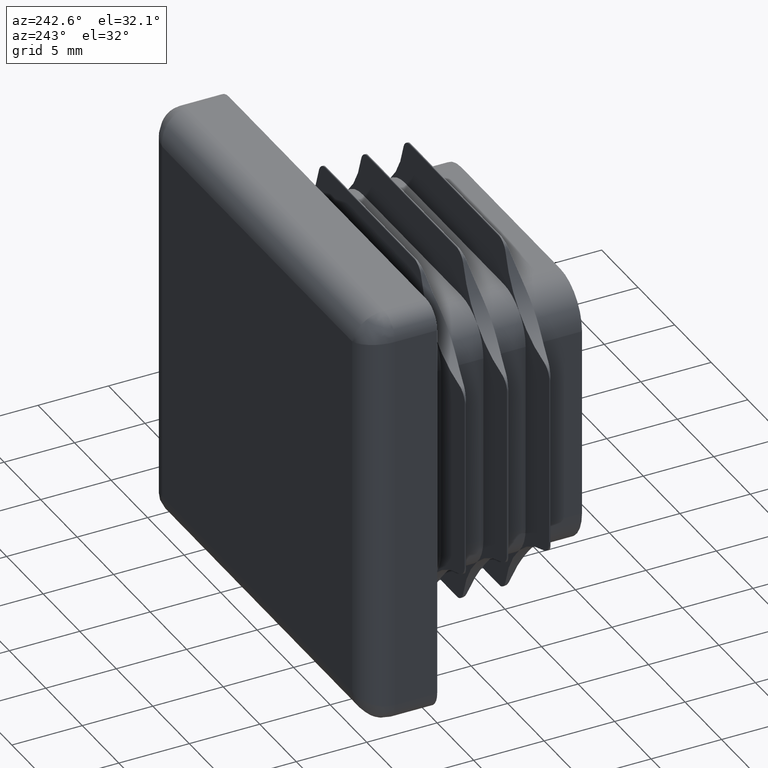
[diagram: clean part render]
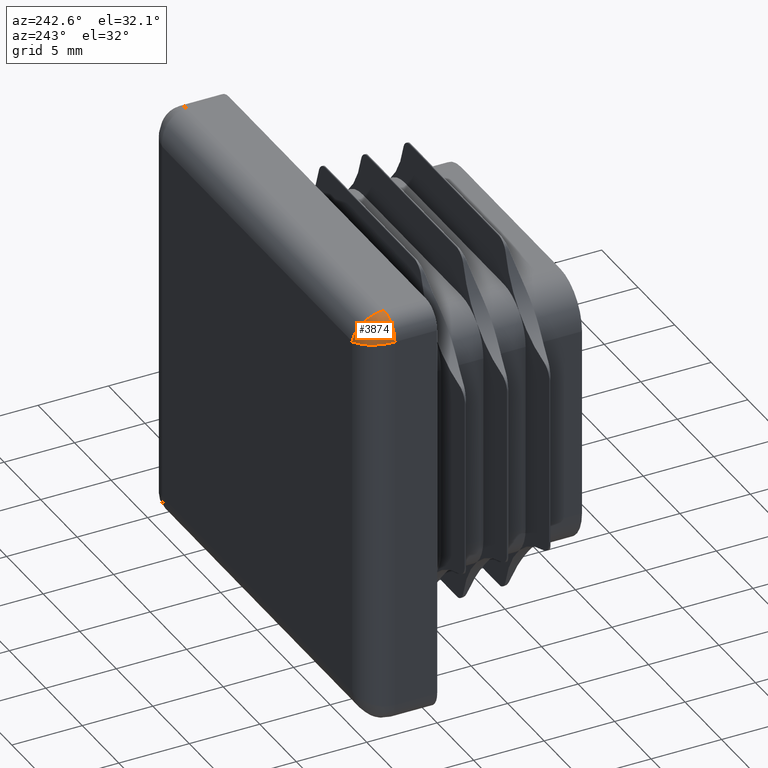
[diagram: same view with one face highlighted and labeled with its STEP entity id]
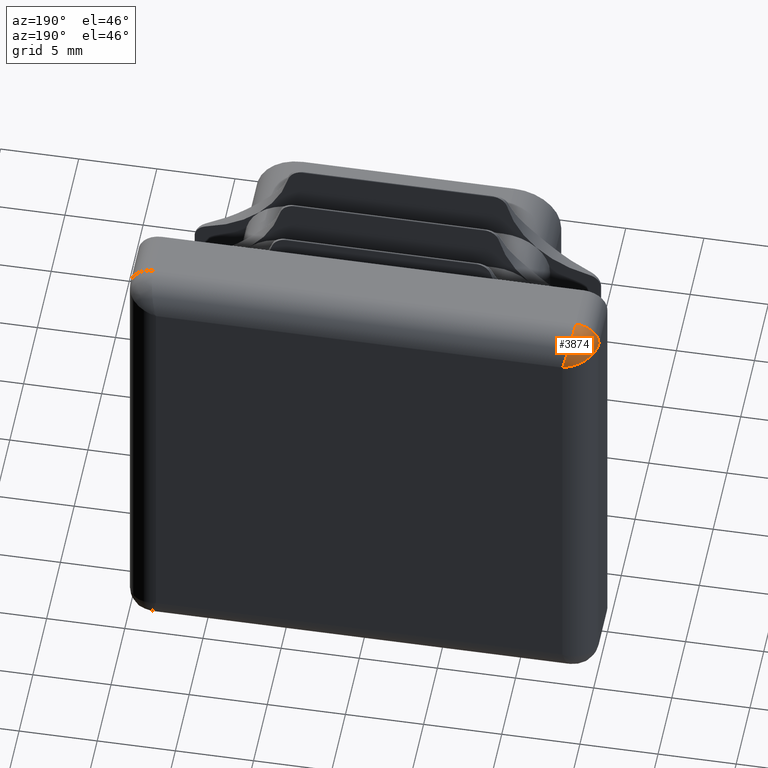
[diagram: same view with one face highlighted and labeled with its STEP entity id]
A machine part, auxiliary view. The second image highlights one B-rep face of the part: STEP entity #3874.
A second angle (auxiliary view) of the same face is appended — the face is thin or edge-on in the first view.
In plain terms, the highlighted face is a freeform B-spline surface patch.
Its self-contained STEP definition (entity closure, byte-faithful):
#414 = ORIENTED_EDGE ( 'NONE', *, *, #18891, .F. ) ;
#982 = CARTESIAN_POINT ( 'NONE',  ( -14.93603331377240018, 3.518565054566740180, 13.48400832844310138 ) ) ;
#1050 = CARTESIAN_POINT ( 'NONE',  ( -14.84930378278231267, 3.862933231318113059, 14.84930378278238905 ) ) ;
#1741 = CARTESIAN_POINT ( 'NONE',  ( -13.49999999999999645, 4.171572875253810153, 15.00000000000001421 ) ) ;
#2319 = CARTESIAN_POINT ( 'NONE',  ( -12.99999999999999289, 5.000000000000000000, 13.00000000000001243 ) ) ;
#2366 = CARTESIAN_POINT ( 'NONE',  ( -12.99999999999999289, 5.000000000000000000, 13.00000000000001243 ) ) ;
#2386 = CARTESIAN_POINT ( 'NONE',  ( -14.57850611585090483, 4.337851778722863649, 14.57850611585092615 ) ) ;
#2517 = CARTESIAN_POINT ( 'NONE',  ( -14.73566316099947748, 4.002301403747635433, 13.43391579024989291 ) ) ;
#2590 = CARTESIAN_POINT ( 'NONE',  ( -14.98710780784051089, 3.261796233497769482, 13.49677695196015570 ) ) ;
#2666 = CARTESIAN_POINT ( 'NONE',  ( -14.26722595265667337, 4.642399879337959945, 14.26722595265665561 ) ) ;
#3180 = AXIS2_PLACEMENT_3D ( 'NONE', #20159, #9025, #7570 ) ;
#3874 = ADVANCED_FACE ( 'NONE', ( #17614 ), #4743, .T. ) ;
#3995 = CARTESIAN_POINT ( 'NONE',  ( -13.33146403732643215, 4.987936888157815218, 13.33146403732652097 ) ) ;
#4067 = CARTESIAN_POINT ( 'NONE',  ( -13.25180946843705421, 4.747572812742430592, 14.00723787374824347 ) ) ;
#4139 = CARTESIAN_POINT ( 'NONE',  ( -14.96738104819232440, 3.454858333943213733, 14.96738104819228710 ) ) ;
#4743 =( BOUNDED_SURFACE ( )  B_SPLINE_SURFACE ( 3, 2, ( 
 ( #5844, #11994, #13707 ),
 ( #16875, #18239, #15171 ),
 ( #18371, #4139, #2590 ),
 ( #19757, #1050, #982 ),
 ( #7426, #13638, #8678 ),
 ( #19885, #2386, #10557 ),
 ( #13503, #15098, #2517 ),
 ( #13573, #2666, #7157 ),
 ( #19821, #11922, #7222 ),
 ( #13435, #5704, #16667 ),
 ( #4067, #18306, #10347 ),
 ( #8816, #3995, #5638 ),
 ( #15031, #10422, #16738 ),
 ( #7293, #8886, #16808 ) ),
 .UNSPECIFIED., .F., .F., .T. ) 
 B_SPLINE_SURFACE_WITH_KNOTS ( ( 4, 2, 2, 2, 2, 2, 4 ),
 ( 3, 3 ),
 ( 6.283185307179586232, 6.479534848028948524, 6.675884388878310816, 6.872233929727672219, 7.068583470577034511, 7.461282552275758206, 7.853981633974482790 ),
 ( 0.000000000000000000, 1.000000000000000000 ),
 .UNSPECIFIED. ) 
 GEOMETRIC_REPRESENTATION_ITEM ( )  RATIONAL_B_SPLINE_SURFACE ( (
 ( 1.000000000000000000, 0.7071067811865479058, 1.000000000000000000),
 ( 1.000000000000000000, 0.7070717008705384998, 1.000000000000000000),
 ( 1.000000000000000000, 0.7117460391535139763, 1.000000000000000000),
 ( 1.000000000000000000, 0.7291288573898031533, 1.000000000000000000),
 ( 1.000000000000000000, 0.7418334672881732317, 1.000000000000000000),
 ( 1.000000000000000000, 0.7723967724090293752, 1.000000000000000000),
 ( 1.000000000000000000, 0.7902180514827625846, 1.000000000000000000),
 ( 1.000000000000000000, 0.8275942267605783664, 1.000000000000000000),
 ( 1.000000000000000000, 0.8471316911967849972, 1.000000000000000000),
 ( 1.000000000000000000, 0.9038128289597433529, 1.000000000000000000),
 ( 1.000000000000000000, 0.9386556746367709092, 1.000000000000000000),
 ( 1.000000000000000000, 0.9867291651255414298, 1.000000000000000000),
 ( 1.000000000000000000, 1.000158598892029405, 1.000000000000000000),
 ( 1.000000000000000000, 1.000000000000000000, 1.000000000000000000) ) ) 
 REPRESENTATION_ITEM ( '' )  SURFACE ( )  );
#5638 = CARTESIAN_POINT ( 'NONE',  ( -13.52349585571212742, 4.947945317302713697, 13.13087396392804251 ) ) ;
#5704 = CARTESIAN_POINT ( 'NONE',  ( -13.86849808255890437, 4.871239223148132069, 13.86849808255892036 ) ) ;
#5844 = CARTESIAN_POINT ( 'NONE',  ( -13.49999999999999467, 3.000000000000000000, 15.00000000000001421 ) ) ;
#5981 = CARTESIAN_POINT ( 'NONE',  ( -13.49999999999999289, 3.000000000000000000, 15.00000000000001421 ) ) ;
#6620 = EDGE_CURVE ( 'NONE', #14237, #14557, #11363, .T. ) ;
#7157 = CARTESIAN_POINT ( 'NONE',  ( -14.59021528821068969, 4.219979528330772389, 13.39755382205268042 ) ) ;
#7222 = CARTESIAN_POINT ( 'NONE',  ( -14.50677358244696968, 4.321653542299213946, 13.37669339561175974 ) ) ;
#7293 = CARTESIAN_POINT ( 'NONE',  ( -12.99999999999999467, 5.000000000000000000, 13.00000000000001243 ) ) ;
#7426 = CARTESIAN_POINT ( 'NONE',  ( -13.47446304501253955, 3.644431387049250848, 14.89785218005009604 ) ) ;
#7570 = DIRECTION ( 'NONE',  ( 0.000000000000000000, 0.000000000000000000, -1.000000000000000000 ) ) ;
#7895 =( BOUNDED_CURVE ( )  B_SPLINE_CURVE ( 3, ( #11165, #11100, #1741, #18915 ),
 .UNSPECIFIED., .F., .T. ) 
 B_SPLINE_CURVE_WITH_KNOTS ( ( 4, 4 ),
 ( 4.712388980384689674, 6.283185307179586232 ),
 .UNSPECIFIED. ) 
 CURVE ( )  GEOMETRIC_REPRESENTATION_ITEM ( )  RATIONAL_B_SPLINE_CURVE ( ( 1.000000000000000000, 0.8047378541243649375, 0.8047378541243649375, 1.000000000000000000 ) ) 
 REPRESENTATION_ITEM ( '' )  );
#8678 = CARTESIAN_POINT ( 'NONE',  ( -14.89785218005009426, 3.644431387049206439, 13.47446304501252712 ) ) ;
#8786 =( BOUNDED_CURVE ( )  B_SPLINE_CURVE ( 3, ( #2366, #15286, #16932, #9002 ),
 .UNSPECIFIED., .F., .F. ) 
 B_SPLINE_CURVE_WITH_KNOTS ( ( 4, 4 ),
 ( 4.712388980384688786, 6.283185307179586232 ),
 .UNSPECIFIED. ) 
 CURVE ( )  GEOMETRIC_REPRESENTATION_ITEM ( )  RATIONAL_B_SPLINE_CURVE ( ( 1.000000000000000000, 0.8047378541243648264, 0.8047378541243648264, 1.000000000000000000 ) ) 
 REPRESENTATION_ITEM ( '' )  );
#8816 = CARTESIAN_POINT ( 'NONE',  ( -13.13087396392802297, 4.947945317302713697, 13.52349585571214341 ) ) ;
#8886 = CARTESIAN_POINT ( 'NONE',  ( -12.99999999999999467, 5.000000000000000000, 13.00000000000001243 ) ) ;
#9002 = CARTESIAN_POINT ( 'NONE',  ( -14.99999999999999289, 3.000000000000000000, 13.50000000000001243 ) ) ;
#9025 = DIRECTION ( 'NONE',  ( 0.000000000000000000, -1.000000000000000000, 0.000000000000000000 ) ) ;
#10347 = CARTESIAN_POINT ( 'NONE',  ( -14.00723787374822749, 4.747572812742429704, 13.25180946843707375 ) ) ;
#10422 = CARTESIAN_POINT ( 'NONE',  ( -13.16360286748328612, 4.999999997674065888, 13.16360286748306407 ) ) ;
#10557 = CARTESIAN_POINT ( 'NONE',  ( -14.79766594999504470, 3.886302342411144028, 13.44941648749878738 ) ) ;
#11100 = CARTESIAN_POINT ( 'NONE',  ( -13.29289321881344854, 5.000000000000000888, 14.17157287525382259 ) ) ;
#11165 = CARTESIAN_POINT ( 'NONE',  ( -12.99999999999999289, 5.000000000000000000, 13.00000000000001243 ) ) ;
#11363 = CIRCLE ( 'NONE', #3180, 1.499999999999999556 ) ;
#11922 = CARTESIAN_POINT ( 'NONE',  ( -14.16316994876160784, 4.712569180173952432, 14.16316994876162383 ) ) ;
#11994 = CARTESIAN_POINT ( 'NONE',  ( -14.99999999999999467, 2.999999999999999556, 15.00000000000001243 ) ) ;
#13435 = CARTESIAN_POINT ( 'NONE',  ( -13.30727338055632636, 4.599333602520846220, 14.22909352222535873 ) ) ;
#13503 = CARTESIAN_POINT ( 'NONE',  ( -13.43391579024987159, 4.002301403747634545, 14.73566316099949880 ) ) ;
#13573 = CARTESIAN_POINT ( 'NONE',  ( -13.39755382205265910, 4.219979528330771501, 14.59021528821071101 ) ) ;
#13638 = CARTESIAN_POINT ( 'NONE',  ( -14.76676386596491497, 4.041650783308536887, 14.76676386596493629 ) ) ;
#13707 = CARTESIAN_POINT ( 'NONE',  ( -14.99999999999999467, 3.000000000000000000, 13.50000000000001421 ) ) ;
#14139 = VERTEX_POINT ( 'NONE', #2319 ) ;
#14237 = VERTEX_POINT ( 'NONE', #5981 ) ;
#14518 = CARTESIAN_POINT ( 'NONE',  ( -14.99999999999999289, 3.000000000000000000, 13.50000000000001243 ) ) ;
#14557 = VERTEX_POINT ( 'NONE', #14518 ) ;
#15031 = CARTESIAN_POINT ( 'NONE',  ( -13.06546163104479064, 5.000000000000000000, 13.26184652417919452 ) ) ;
#15098 = CARTESIAN_POINT ( 'NONE',  ( -14.47512791244873753, 4.456070975774498066, 14.47512791244878372 ) ) ;
#15171 = CARTESIAN_POINT ( 'NONE',  ( -14.99999999999999467, 3.130901116873742840, 13.49999999993458744 ) ) ;
#15286 = CARTESIAN_POINT ( 'NONE',  ( -14.17157287525380127, 5.000000000000001776, 13.29289321881346808 ) ) ;
#15896 = EDGE_CURVE ( 'NONE', #14139, #14557, #8786, .T. ) ;
#16667 = CARTESIAN_POINT ( 'NONE',  ( -14.22909352222534096, 4.599333602520844444, 13.30727338055634412 ) ) ;
#16738 = CARTESIAN_POINT ( 'NONE',  ( -13.26184652417917675, 5.000000000000000000, 13.06546163104480840 ) ) ;
#16808 = CARTESIAN_POINT ( 'NONE',  ( -12.99999999999999645, 5.000000000000000000, 13.00000000000001243 ) ) ;
#16875 = CARTESIAN_POINT ( 'NONE',  ( -13.49999999993445421, 3.130901116873741064, 15.00000000000001421 ) ) ;
#16932 = CARTESIAN_POINT ( 'NONE',  ( -14.99999999999999289, 4.171572875253811041, 13.50000000000001599 ) ) ;
#17265 = ORIENTED_EDGE ( 'NONE', *, *, #15896, .T. ) ;
#17614 = FACE_OUTER_BOUND ( 'NONE', #19962, .T. ) ;
#18239 = CARTESIAN_POINT ( 'NONE',  ( -14.99999999108458937, 3.229445146648385112, 14.99999999108486115 ) ) ;
#18306 = CARTESIAN_POINT ( 'NONE',  ( -13.67928185404620578, 4.924992851440381791, 13.67928185404614183 ) ) ;
#18371 = CARTESIAN_POINT ( 'NONE',  ( -13.49677695196013616, 3.261796233497769926, 14.98710780784053043 ) ) ;
#18891 = EDGE_CURVE ( 'NONE', #14139, #14237, #7895, .T. ) ;
#18915 = CARTESIAN_POINT ( 'NONE',  ( -13.49999999999999289, 3.000000000000000000, 15.00000000000001421 ) ) ;
#19757 = CARTESIAN_POINT ( 'NONE',  ( -13.48400832844308184, 3.518565054566741068, 14.93603331377241972 ) ) ;
#19821 = CARTESIAN_POINT ( 'NONE',  ( -13.37669339561174020, 4.321653542299215722, 14.50677358244698745 ) ) ;
#19885 = CARTESIAN_POINT ( 'NONE',  ( -13.44941648749873764, 3.886302342411101396, 14.79766594999508023 ) ) ;
#19962 = EDGE_LOOP ( 'NONE', ( #17265, #20434, #414 ) ) ;
#20159 = CARTESIAN_POINT ( 'NONE',  ( -13.49999999999999289, 3.000000000000000000, 13.50000000000001421 ) ) ;
#20434 = ORIENTED_EDGE ( 'NONE', *, *, #6620, .F. ) ;